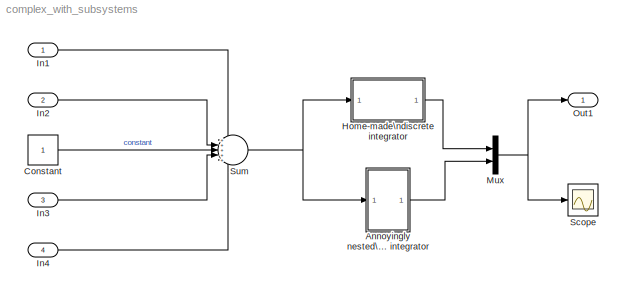
MODEL complex_with_subsystems
KIND model
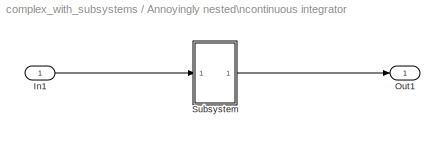
BLOCK [SubSystem] Annoyingly nested\ncontinuous integrator
  FunctionWithSeparateData = off
  MaskHideContents = off
  MinAlgLoopOccurrences = off
  Opaque = off
  Ports = [1, 1]
  PropExecContextOutsideSubsystem = off
  RTWSystemCode = Auto
  RequestExecContextInheritance = off
  SID = 21
BLOCK [Inport] Annoyingly nested\ncontinuous integrator/In1
  IconDisplay = Port number
  SID = 24
BLOCK [Outport] Annoyingly nested\ncontinuous integrator/Out1
  IconDisplay = Port number
  SID = 23
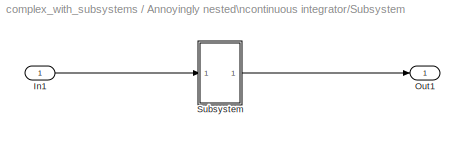
BLOCK [SubSystem] Annoyingly nested\ncontinuous integrator/Subsystem
  FunctionWithSeparateData = off
  MaskHideContents = off
  MinAlgLoopOccurrences = off
  Opaque = off
  Ports = [1, 1]
  PropExecContextOutsideSubsystem = off
  RTWSystemCode = Auto
  RequestExecContextInheritance = off
  SID = 25
BLOCK [Inport] Annoyingly nested\ncontinuous integrator/Subsystem/In1
  IconDisplay = Port number
  SID = 26
BLOCK [Outport] Annoyingly nested\ncontinuous integrator/Subsystem/Out1
  IconDisplay = Port number
  SID = 27
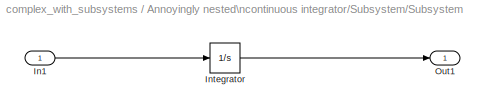
BLOCK [SubSystem] Annoyingly nested\ncontinuous integrator/Subsystem/Subsystem
  FunctionWithSeparateData = off
  MaskHideContents = off
  MinAlgLoopOccurrences = off
  Opaque = off
  Ports = [1, 1]
  PropExecContextOutsideSubsystem = off
  RTWSystemCode = Auto
  RequestExecContextInheritance = off
  SID = 28
BLOCK [Inport] Annoyingly nested\ncontinuous integrator/Subsystem/Subsystem/In1
  IconDisplay = Port number
  SID = 29
BLOCK [Integrator] Annoyingly nested\ncontinuous integrator/Subsystem/Subsystem/Integrator
  Ports = [1, 1]
  SID = 7
BLOCK [Outport] Annoyingly nested\ncontinuous integrator/Subsystem/Subsystem/Out1
  IconDisplay = Port number
  SID = 30
BLOCK [Constant] Constant
  SID = 13
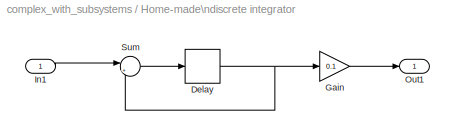
BLOCK [SubSystem] Home-made\ndiscrete integrator
  FunctionWithSeparateData = off
  MaskHideContents = off
  MinAlgLoopOccurrences = off
  Opaque = off
  Ports = [1, 1]
  PropExecContextOutsideSubsystem = off
  RTWSystemCode = Auto
  RequestExecContextInheritance = off
  SID = 14
BLOCK [Delay] Home-made\ndiscrete integrator/Delay
  DelayLength = 1
  InitialCondition = 0
  InputPortMap = u0
  Ports = [1, 1]
  SID = 18
  SampleTime = 0.1
BLOCK [Gain] Home-made\ndiscrete integrator/Gain
  Gain = 0.1
  OutDataTypeStr = Inherit: Inherit via internal rule
  ParamDataTypeStr = Inherit: Inherit via internal rule
  SID = 20
  SaturateOnIntegerOverflow = off
BLOCK [Inport] Home-made\ndiscrete integrator/In1
  IconDisplay = Port number
  SID = 17
BLOCK [Outport] Home-made\ndiscrete integrator/Out1
  IconDisplay = Port number
  SID = 16
BLOCK [Sum] Home-made\ndiscrete integrator/Sum
  IconShape = round
  InputSameDT = off
  Inputs = |++
  OutDataTypeStr = Inherit: Inherit via internal rule
  Ports = [2, 1]
  SID = 19
  SaturateOnIntegerOverflow = off
BLOCK [Inport] In1
  IconDisplay = Port number
  SID = 1
BLOCK [Inport] In2
  IconDisplay = Port number
  Port = 2
  SID = 2
BLOCK [Inport] In3
  IconDisplay = Port number
  Port = 3
  SID = 4
BLOCK [Inport] In4
  IconDisplay = Port number
  Port = 4
  SID = 6
BLOCK [Mux] Mux
  DisplayOption = bar
  Inputs = 2
  Ports = [2, 1]
  SID = 9
BLOCK [Outport] Out1
  IconDisplay = Port number
  SID = 10
BLOCK [Scope] Scope
  DataFormat = StructureWithTime
  Floating = off
  LimitDataPoints = off
  NumInputPorts = 1
  Ports = [1]
  SID = 11
  SampleTime = 0
  ShowLegends = off
BLOCK [Sum] Sum
  IconShape = round
  InputSameDT = off
  Inputs = +++++
  OutDataTypeStr = Inherit: Inherit via internal rule
  Ports = [5, 1]
  SID = 5
  SaturateOnIntegerOverflow = off
LINE Annoyingly nested\ncontinuous integrator/In1:1 -> Annoyingly nested\ncontinuous integrator/Subsystem:1
LINE Annoyingly nested\ncontinuous integrator/Subsystem/In1:1 -> Annoyingly nested\ncontinuous integrator/Subsystem/Subsystem:1
LINE Annoyingly nested\ncontinuous integrator/Subsystem/Subsystem/In1:1 -> Annoyingly nested\ncontinuous integrator/Subsystem/Subsystem/Integrator:1
LINE Annoyingly nested\ncontinuous integrator/Subsystem/Subsystem/Integrator:1 -> Annoyingly nested\ncontinuous integrator/Subsystem/Subsystem/Out1:1
LINE Annoyingly nested\ncontinuous integrator/Subsystem/Subsystem:1 -> Annoyingly nested\ncontinuous integrator/Subsystem/Out1:1
LINE Annoyingly nested\ncontinuous integrator/Subsystem:1 -> Annoyingly nested\ncontinuous integrator/Out1:1
LINE Annoyingly nested\ncontinuous integrator:1 -> Mux:2
LINE Constant:1 -> Sum:3
NET Home-made\ndiscrete integrator/Delay:1 -> Home-made\ndiscrete integrator/Gain:1, Home-made\ndiscrete integrator/Sum:2
LINE Home-made\ndiscrete integrator/Gain:1 -> Home-made\ndiscrete integrator/Out1:1
LINE Home-made\ndiscrete integrator/In1:1 -> Home-made\ndiscrete integrator/Sum:1
LINE Home-made\ndiscrete integrator/Sum:1 -> Home-made\ndiscrete integrator/Delay:1
LINE Home-made\ndiscrete integrator:1 -> Mux:1
LINE In1:1 -> Sum:1
LINE In2:1 -> Sum:2
LINE In3:1 -> Sum:4
LINE In4:1 -> Sum:5
NET Mux:1 -> Out1:1, Scope:1
NET Sum:1 -> Annoyingly nested\ncontinuous integrator:1, Home-made\ndiscrete integrator:1
note: NET lines group one-source signal fan-out (src -> all destinations, sorted); 1:1 wires keep LINE
